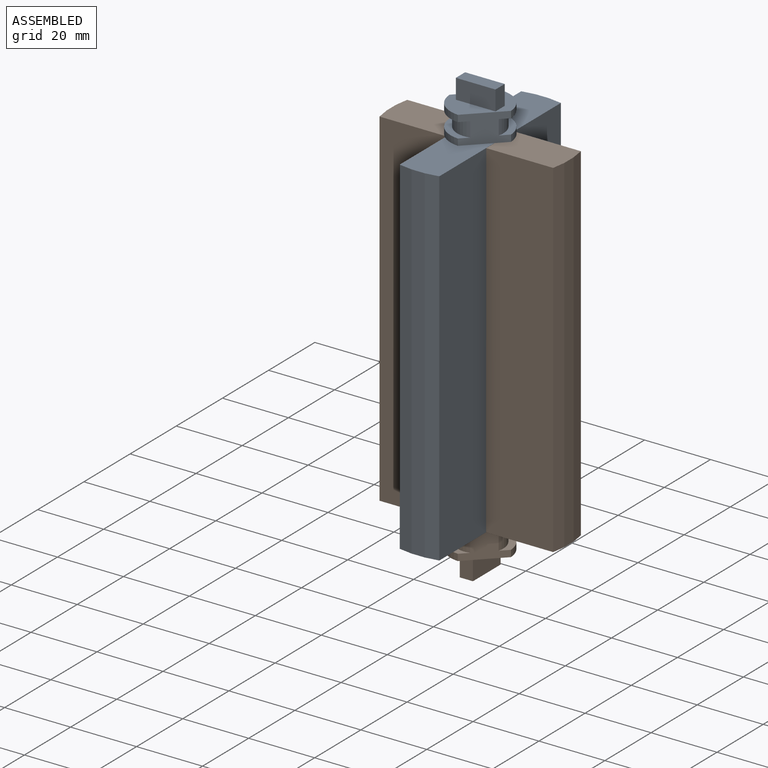
[diagram: assembled view]
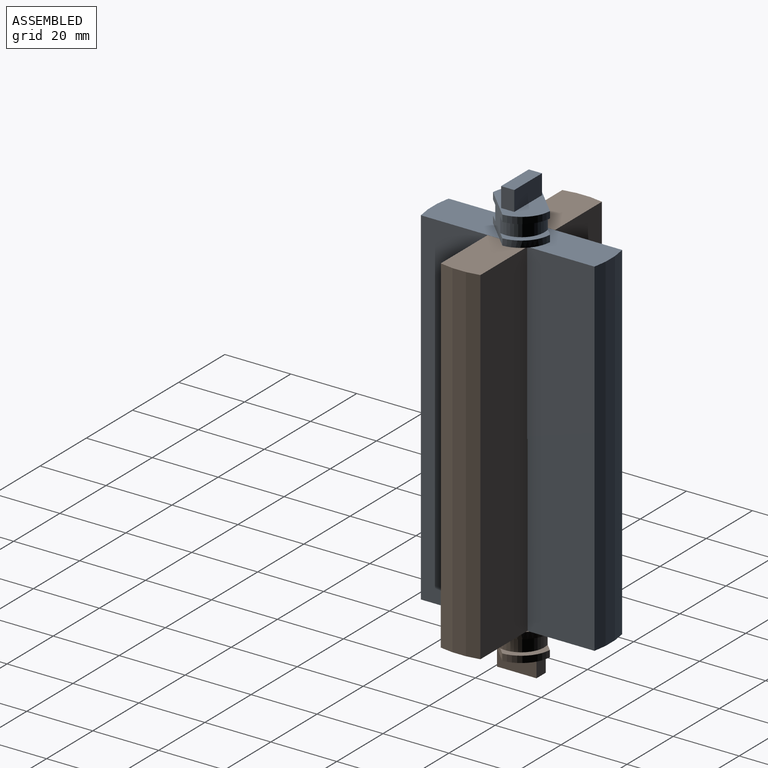
[diagram: assembled view, second angle]
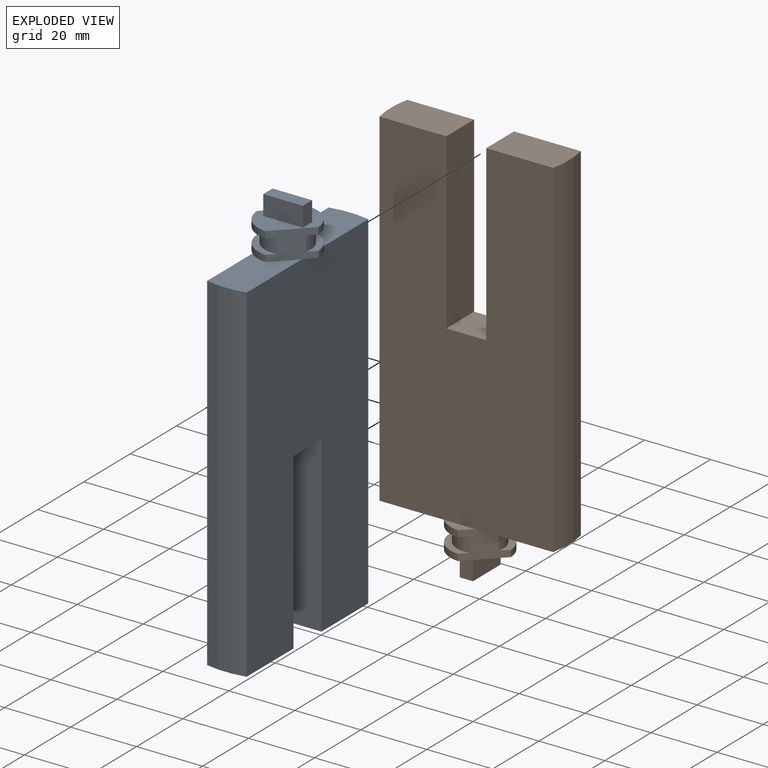
[diagram: exploded view]
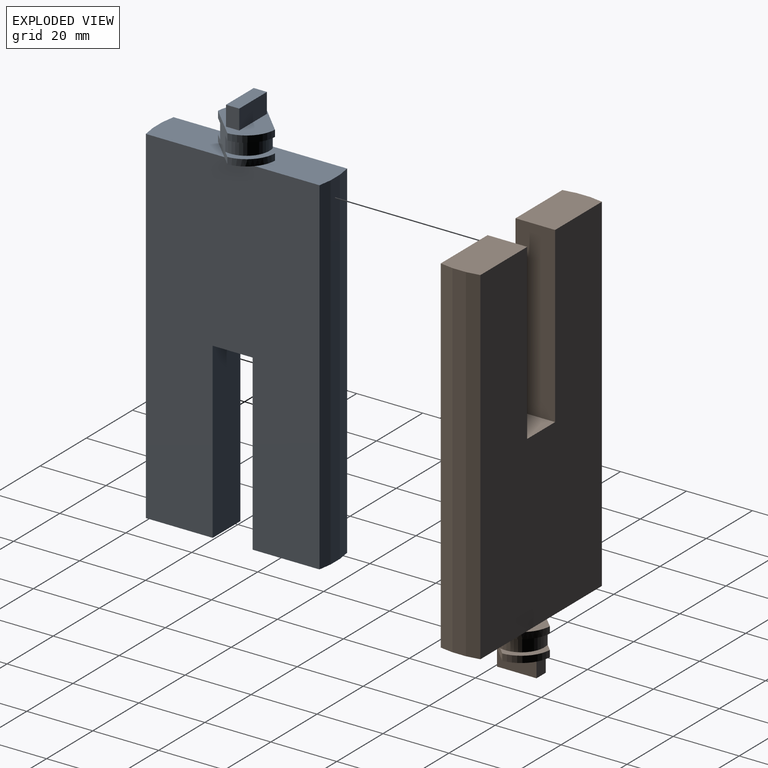
[diagram: exploded view, second angle]
ASSEMBLY  parts=2 mates=2
PART A: 31 faces, bbox 18x54x119.8 mm
  f0: plane 105.29x52.65mm, normal (1,0,0), area 4906.7mm2, adj f2,f14,f15,f16,f17,f18,f27,f28
  f1: plane 105.29x52.65mm, normal (-1,0,0), area 4906.7mm2, adj f2,f15,f16,f17,f18,f19,f27,f28
  f2: plane 20.95x12mm, normal (0,0,-1), area 248.7mm2, adj f0,f1,f15,f30
  f3: plane 17.97x17.97mm, normal (0,0,1), area 150.7mm2, adj f10,f11,f20,f21,f22,f23,f25,f26
  f4: cylinder r=9mm len=8.49mm, axis (0,0,-1), area 26.3mm2, adj f7,f17,f19,f25,f26
  f5: cylinder r=9mm len=8.49mm, axis (0,0,-1), area 26.3mm2, adj f6,f14,f18,f25,f26
  f6: plane 10.68x10.68mm, normal (0,0,1), area 27.3mm2, adj f5,f8,f25,f26
  f7: plane 10.68x10.68mm, normal (0,0,1), area 27.3mm2, adj f4,f9,f25,f26
  f8: cylinder r=7mm len=8.69mm, axis (0,0,-1), area 64.9mm2, adj f6,f12,f25,f26
  f9: cylinder r=7mm len=8.69mm, axis (0,0,-1), area 64.9mm2, adj f7,f13,f25,f26
  f10: cylinder r=9mm len=8.49mm, axis (0,0,-1), area 26.3mm2, adj f3,f13,f25,f26
  f11: cylinder r=9mm len=8.49mm, axis (0,0,-1), area 26.3mm2, adj f3,f12,f25,f26
  f12: plane 10.68x10.68mm, normal (0,0,-1), area 27.3mm2, adj f8,f11,f25,f26
  f13: plane 10.68x10.68mm, normal (0,0,-1), area 27.3mm2, adj f9,f10,f25,f26
  f14: plane 9.19x2.99mm, normal (0,0,-1), area 16.9mm2, adj f0,f5,f26
  f15: cylinder r=27mm len=105.29mm, axis (0,0,-1), area 1274.2mm2, adj f0,f1,f2,f17
  f16: cylinder r=27mm len=105.29mm, axis (0,0,-1), area 1274.2mm2, adj f0,f1,f18,f27
  f17: plane 24.51x12mm, normal (0,0,1), area 238.9mm2, adj f0,f1,f4,f15,f26
  f18: plane 24.51x12mm, normal (0,0,1), area 238.9mm2, adj f0,f1,f5,f16,f25
  f19: plane 9.19x2.99mm, normal (0,0,-1), area 16.9mm2, adj f1,f4,f25
  f20: plane 6x4mm, normal (-1,0,0), area 24mm2, adj f3,f21,f23,f24
  f21: plane 12x6mm, normal (0,-1,0), area 72mm2, adj f3,f20,f22,f24
  f22: plane 6x4mm, normal (1,0,0), area 24mm2, adj f3,f21,f23,f24
  f23: plane 12x6mm, normal (0,1,0), area 72mm2, adj f3,f20,f22,f24
  f24: plane 12x4mm, normal (0,0,1), area 48mm2, adj f20,f21,f22,f23
  f25: plane 9.49x9.49mm, normal (-0.71,0.71,0), area 86.1mm2, adj f3,f4,f5,f6,f7,f8,f9,f10
  f26: plane 9.49x9.49mm, normal (0.71,-0.71,0), area 86.1mm2, adj f3,f4,f5,f6,f7,f8,f9,f10
  f27: plane 20.95x12mm, normal (0,0,-1), area 248.7mm2, adj f0,f1,f16,f29
  f28: plane 12.1x12mm, normal (0,0,-1), area 145.2mm2, adj f0,f1,f29,f30
  f29: plane 52.65x12mm, normal (0,-1,0), area 631.8mm2, adj f0,f1,f27,f28
  f30: plane 52.65x12mm, normal (0,1,0), area 631.8mm2, adj f0,f1,f2,f28
PART B: same geometry as A
PLACE A t=(-46.44,-10.49,-11.01)mm
PLACE B rot(axis=(-0.71,0.71,0),180deg) t=(-46.44,-10.54,-11.01)mm
MATE planar B.f0 <-> A.f30  axis (0,-1,0) through (-46.44,-16.54,-14.43)mm
MATE planar B.f4 <-> A.f4  axis (0,0,1) through (-46.44,-10.54,-11.01)mm
